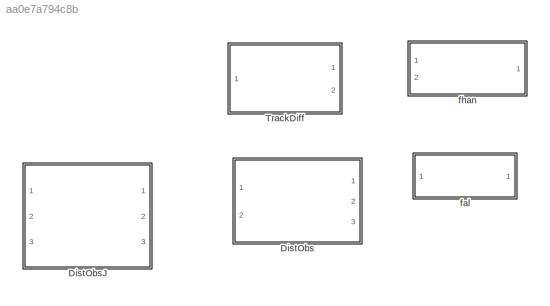
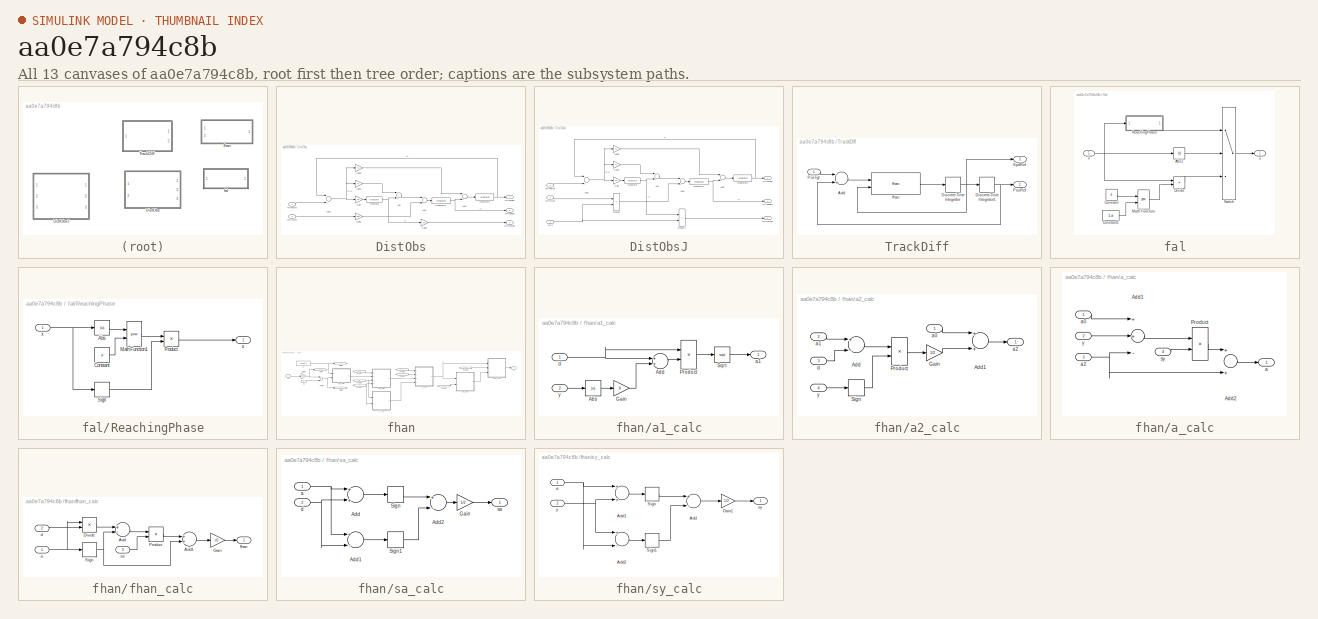
[diagram: thumbnail index - all 13 canvases of the model, root first then tree order]
MODEL slx_aa0e7a794c8b
KIND library
CONFIG AbsTol = auto
CONFIG EnableMultiTasking = off
CONFIG FixedStep = auto
CONFIG MaxStep = auto
CONFIG MinStep = auto
CONFIG RelTol = 1e-3
CONFIG SampleTimeConstraint = Unconstrained
CONFIG Solver = VariableStepAuto
CONFIG SolverName = VariableStepAuto
CONFIG StartTime = 0.0
CONFIG StopTime = 10.0
BLOCK [SubSystem] DistObs
  Ports = [2, 3]
  RequestExecContextInheritance = off
  SystemSampleTime = 1/30e3
BLOCK [Sum] DistObs/Add
  InputSameDT = off
  OutDataTypeStr = Inherit: Inherit via internal rule
  Ports = [2, 1]
  SaturateOnIntegerOverflow = off
BLOCK [Sum] DistObs/Add1
  InputSameDT = off
  OutDataTypeStr = Inherit: Inherit via internal rule
  Ports = [2, 1]
  SaturateOnIntegerOverflow = off
BLOCK [Sum] DistObs/Add2
  InputSameDT = off
  OutDataTypeStr = Inherit: Inherit via internal rule
  Ports = [2, 1]
  SaturateOnIntegerOverflow = off
BLOCK [Sum] DistObs/Add3
  InputSameDT = off
  Inputs = -+
  OutDataTypeStr = Inherit: Inherit via internal rule
  Ports = [2, 1]
  SaturateOnIntegerOverflow = off
BLOCK [Gain] DistObs/Gain
  AttributesFormatString = %<Gain>
  Gain = k3
  OutDataTypeStr = Inherit: Inherit via internal rule
  ParamDataTypeStr = Inherit: Inherit via internal rule
  SaturateOnIntegerOverflow = off
BLOCK [Gain] DistObs/Gain1
  AttributesFormatString = %<Gain>
  Gain = k2
  OutDataTypeStr = Inherit: Inherit via internal rule
  ParamDataTypeStr = Inherit: Inherit via internal rule
  SaturateOnIntegerOverflow = off
BLOCK [Gain] DistObs/Gain2
  AttributesFormatString = %<Gain>
  Gain = 1 / Jm
  OutDataTypeStr = Inherit: Inherit via internal rule
  ParamDataTypeStr = Inherit: Inherit via internal rule
  SaturateOnIntegerOverflow = off
BLOCK [Gain] DistObs/Gain3
  AttributesFormatString = %<Gain>
  Gain = k1
  OutDataTypeStr = Inherit: Inherit via internal rule
  ParamDataTypeStr = Inherit: Inherit via internal rule
  SaturateOnIntegerOverflow = off
BLOCK [Gain] DistObs/Gain4
  AttributesFormatString = %<Gain>
  Gain = -Jm
  OutDataTypeStr = Inherit: Inherit via internal rule
  ParamDataTypeStr = Inherit: Inherit via internal rule
  SaturateOnIntegerOverflow = off
BLOCK [Reference] DistObs/Integrator  REF=ctrl_lib/Integrator  (lib defined in slx_12a75478d468, slx_92942179a066)
  Ports = [1, 1]
  SourceBlock = ctrl_lib/Integrator
BLOCK [Reference] DistObs/Integrator1  REF=ctrl_lib/Integrator  (lib defined in slx_12a75478d468, slx_92942179a066)
  Ports = [1, 1]
  SourceBlock = ctrl_lib/Integrator
BLOCK [Reference] DistObs/Integrator2  REF=ctrl_lib/Integrator  (lib defined in slx_12a75478d468, slx_92942179a066)
  Ports = [1, 1]
  SourceBlock = ctrl_lib/Integrator
BLOCK [Outport] DistObs/MtrDistEst
  IconDisplay = Port number
  Port = 3
BLOCK [Inport] DistObs/MtrPosAct
  IconDisplay = Port number
BLOCK [Outport] DistObs/MtrPosEst
  IconDisplay = Port number
BLOCK [Outport] DistObs/MtrSpdEst
  IconDisplay = Port number
  Port = 2
BLOCK [Inport] DistObs/MtrTrqAct
  IconDisplay = Port number
  Port = 2
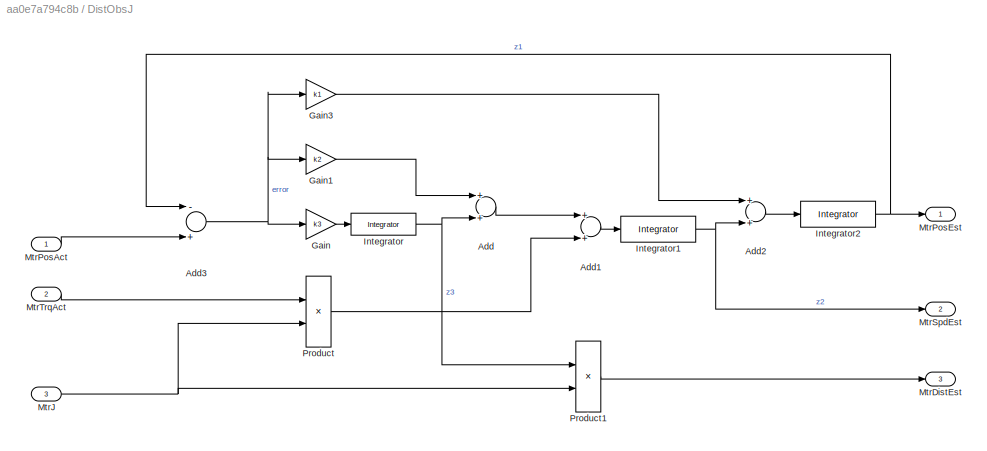
BLOCK [SubSystem] DistObsJ
  Ports = [3, 3]
  RequestExecContextInheritance = off
  SystemSampleTime = 1/30e3
BLOCK [Sum] DistObsJ/Add
  InputSameDT = off
  OutDataTypeStr = Inherit: Inherit via internal rule
  Ports = [2, 1]
  SaturateOnIntegerOverflow = off
BLOCK [Sum] DistObsJ/Add1
  InputSameDT = off
  OutDataTypeStr = Inherit: Inherit via internal rule
  Ports = [2, 1]
  SaturateOnIntegerOverflow = off
BLOCK [Sum] DistObsJ/Add2
  InputSameDT = off
  OutDataTypeStr = Inherit: Inherit via internal rule
  Ports = [2, 1]
  SaturateOnIntegerOverflow = off
BLOCK [Sum] DistObsJ/Add3
  InputSameDT = off
  Inputs = -+
  OutDataTypeStr = Inherit: Inherit via internal rule
  Ports = [2, 1]
  SaturateOnIntegerOverflow = off
BLOCK [Gain] DistObsJ/Gain
  AttributesFormatString = %<Gain>
  Gain = k3
  OutDataTypeStr = Inherit: Inherit via internal rule
  ParamDataTypeStr = Inherit: Inherit via internal rule
  SaturateOnIntegerOverflow = off
BLOCK [Gain] DistObsJ/Gain1
  AttributesFormatString = %<Gain>
  Gain = k2
  OutDataTypeStr = Inherit: Inherit via internal rule
  ParamDataTypeStr = Inherit: Inherit via internal rule
  SaturateOnIntegerOverflow = off
BLOCK [Gain] DistObsJ/Gain3
  AttributesFormatString = %<Gain>
  Gain = k1
  OutDataTypeStr = Inherit: Inherit via internal rule
  ParamDataTypeStr = Inherit: Inherit via internal rule
  SaturateOnIntegerOverflow = off
BLOCK [Reference] DistObsJ/Integrator  REF=ctrl_lib/Integrator  (lib defined in slx_12a75478d468, slx_92942179a066)
  Ports = [1, 1]
  SourceBlock = ctrl_lib/Integrator
BLOCK [Reference] DistObsJ/Integrator1  REF=ctrl_lib/Integrator  (lib defined in slx_12a75478d468, slx_92942179a066)
  Ports = [1, 1]
  SourceBlock = ctrl_lib/Integrator
BLOCK [Reference] DistObsJ/Integrator2  REF=ctrl_lib/Integrator  (lib defined in slx_12a75478d468, slx_92942179a066)
  Ports = [1, 1]
  SourceBlock = ctrl_lib/Integrator
BLOCK [Outport] DistObsJ/MtrDistEst
  IconDisplay = Port number
  Port = 3
BLOCK [Inport] DistObsJ/MtrJ
  IconDisplay = Port number
  Port = 3
BLOCK [Inport] DistObsJ/MtrPosAct
  IconDisplay = Port number
BLOCK [Outport] DistObsJ/MtrPosEst
  IconDisplay = Port number
BLOCK [Outport] DistObsJ/MtrSpdEst
  IconDisplay = Port number
  Port = 2
BLOCK [Inport] DistObsJ/MtrTrqAct
  IconDisplay = Port number
  Port = 2
BLOCK [Product] DistObsJ/Product
  InputSameDT = off
  Inputs = */
  OutDataTypeStr = Inherit: Inherit via internal rule
  Ports = [2, 1]
  RndMeth = Floor
  SaturateOnIntegerOverflow = off
BLOCK [Product] DistObsJ/Product1
  InputSameDT = off
  Inputs = **
  OutDataTypeStr = Inherit: Inherit via internal rule
  Ports = [2, 1]
  RndMeth = Floor
  SaturateOnIntegerOverflow = off
BLOCK [SubSystem] TrackDiff
  Ports = [1, 2]
  RequestExecContextInheritance = off
BLOCK [Sum] TrackDiff/Add
  AccumDataTypeStr = Inherit: Same as first input
  InputSameDT = off
  Inputs = -+
  OutDataTypeStr = Inherit: Inherit via internal rule
  Ports = [2, 1]
  SaturateOnIntegerOverflow = off
BLOCK [DiscreteIntegrator] TrackDiff/Discrete-Time Integrator
  ICPrevOutput = DiscIntNeverNeededParam
  ICPrevScaledInput = DiscIntNeverNeededParam
  IntegratorMethod = Accumulation: Forward Euler
  Ports = [1, 1]
  SampleTime = -1
  gainval = ts
BLOCK [DiscreteIntegrator] TrackDiff/Discrete-Time Integrator1
  ICPrevOutput = DiscIntNeverNeededParam
  ICPrevScaledInput = DiscIntNeverNeededParam
  IntegratorMethod = Accumulation: Forward Euler
  Ports = [1, 1]
  SampleTime = -1
  gainval = ts
BLOCK [Outport] TrackDiff/PosRef
  IconDisplay = Port number
BLOCK [Inport] TrackDiff/PosTgt
  IconDisplay = Port number
BLOCK [Outport] TrackDiff/SpdRef
  IconDisplay = Port number
  Port = 2
BLOCK [Reference] TrackDiff/fhan  REF=$bdroot/fhan
  Ports = [2, 1]
  SourceBlock = $bdroot/fhan
BLOCK [SubSystem] fal
  Ports = [1, 1]
  RequestExecContextInheritance = off
BLOCK [Abs] fal/Abs1
  SaturateOnIntegerOverflow = off
BLOCK [Constant] fal/Constant
  OutDataTypeStr = single
  Value = d
BLOCK [Constant] fal/Constant1
  OutDataTypeStr = single
  Value = 1-a
BLOCK [Product] fal/Divide
  InputSameDT = off
  Inputs = */
  OutDataTypeStr = Inherit: Inherit via internal rule
  Ports = [2, 1]
  RndMeth = Floor
  SaturateOnIntegerOverflow = off
BLOCK [Math] fal/Math Function
  Operator = pow
  Ports = [2, 1]
BLOCK [SubSystem] fal/ReachingPhase
  Ports = [1, 1]
  RequestExecContextInheritance = off
BLOCK [Abs] fal/ReachingPhase/Abs
  SaturateOnIntegerOverflow = off
BLOCK [Constant] fal/ReachingPhase/Constant
  OutDataTypeStr = single
  Value = a
BLOCK [Math] fal/ReachingPhase/Math Function1
  Operator = pow
  Ports = [2, 1]
BLOCK [Product] fal/ReachingPhase/Product
  InputSameDT = off
  Ports = [2, 1]
  RndMeth = Floor
  SaturateOnIntegerOverflow = off
BLOCK [Signum] fal/ReachingPhase/Sign
BLOCK [Outport] fal/ReachingPhase/u
  IconDisplay = Port number
BLOCK [Inport] fal/ReachingPhase/x
  IconDisplay = Port number
BLOCK [Switch] fal/Switch
  AttributesFormatString = %<Criteria>
  InputSameDT = off
  SaturateOnIntegerOverflow = off
  Threshold = delta
BLOCK [Outport] fal/u
  IconDisplay = Port number
BLOCK [Inport] fal/v
  IconDisplay = Port number
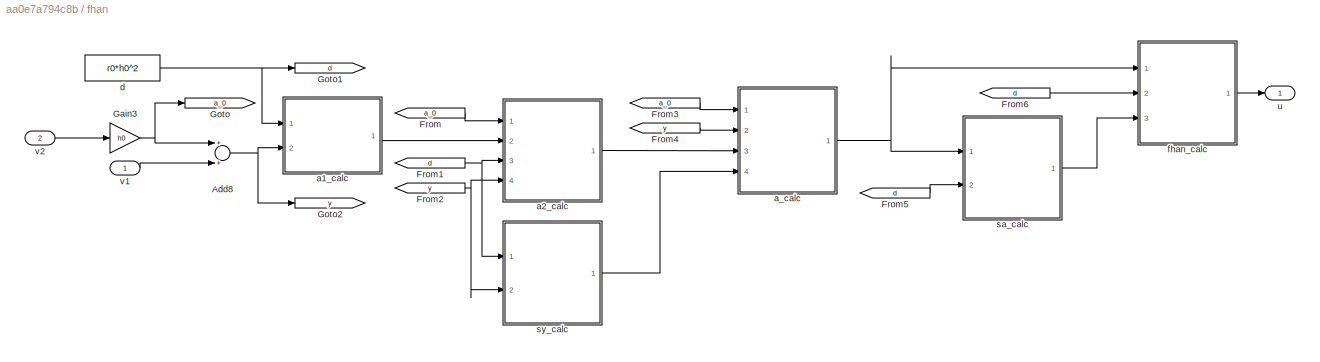
BLOCK [SubSystem] fhan
  Ports = [2, 1]
  RequestExecContextInheritance = off
BLOCK [Sum] fhan/Add8
  InputSameDT = off
  OutDataTypeStr = Inherit: Inherit via internal rule
  Ports = [2, 1]
  SaturateOnIntegerOverflow = off
BLOCK [From] fhan/From
  GotoTag = a_0
BLOCK [From] fhan/From1
  GotoTag = d
BLOCK [From] fhan/From2
  GotoTag = y
BLOCK [From] fhan/From3
  GotoTag = a_0
BLOCK [From] fhan/From4
  GotoTag = y
BLOCK [From] fhan/From5
  GotoTag = d
BLOCK [From] fhan/From6
  GotoTag = d
BLOCK [Gain] fhan/Gain3
  Gain = h0
  OutDataTypeStr = Inherit: Inherit via internal rule
  ParamDataTypeStr = Inherit: Inherit via internal rule
  SaturateOnIntegerOverflow = off
BLOCK [Goto] fhan/Goto
  GotoTag = a_0
BLOCK [Goto] fhan/Goto1
  GotoTag = d
BLOCK [Goto] fhan/Goto2
  GotoTag = y
BLOCK [SubSystem] fhan/a1_calc
  Ports = [2, 1]
  RequestExecContextInheritance = off
BLOCK [Abs] fhan/a1_calc/Abs
  SaturateOnIntegerOverflow = off
BLOCK [Sum] fhan/a1_calc/Add
  InputSameDT = off
  OutDataTypeStr = Inherit: Inherit via internal rule
  Ports = [2, 1]
  SaturateOnIntegerOverflow = off
BLOCK [Gain] fhan/a1_calc/Gain
  Gain = 8
  OutDataTypeStr = Inherit: Inherit via internal rule
  ParamDataTypeStr = Inherit: Inherit via internal rule
  SaturateOnIntegerOverflow = off
BLOCK [Product] fhan/a1_calc/Product
  InputSameDT = off
  OutDataTypeStr = Inherit: Inherit via internal rule
  Ports = [2, 1]
  RndMeth = Floor
  SaturateOnIntegerOverflow = off
BLOCK [Sqrt] fhan/a1_calc/Sqrt
BLOCK [Outport] fhan/a1_calc/a1
  IconDisplay = Port number
BLOCK [Inport] fhan/a1_calc/d
  IconDisplay = Port number
BLOCK [Inport] fhan/a1_calc/y
  IconDisplay = Port number
  Port = 2
BLOCK [SubSystem] fhan/a2_calc
  Ports = [4, 1]
  RequestExecContextInheritance = off
BLOCK [Sum] fhan/a2_calc/Add
  InputSameDT = off
  Inputs = +-
  OutDataTypeStr = Inherit: Inherit via internal rule
  Ports = [2, 1]
  SaturateOnIntegerOverflow = off
BLOCK [Sum] fhan/a2_calc/Add1
  InputSameDT = off
  OutDataTypeStr = Inherit: Inherit via internal rule
  Ports = [2, 1]
  SaturateOnIntegerOverflow = off
BLOCK [Gain] fhan/a2_calc/Gain
  Gain = 1/2
  OutDataTypeStr = Inherit: Inherit via internal rule
  ParamDataTypeStr = Inherit: Inherit via internal rule
  SaturateOnIntegerOverflow = off
BLOCK [Product] fhan/a2_calc/Product
  InputSameDT = off
  OutDataTypeStr = Inherit: Inherit via internal rule
  Ports = [2, 1]
  RndMeth = Floor
  SaturateOnIntegerOverflow = off
BLOCK [Signum] fhan/a2_calc/Sign
BLOCK [Inport] fhan/a2_calc/a0
  IconDisplay = Port number
BLOCK [Inport] fhan/a2_calc/a1
  IconDisplay = Port number
  Port = 2
BLOCK [Outport] fhan/a2_calc/a2
  IconDisplay = Port number
BLOCK [Inport] fhan/a2_calc/d
  IconDisplay = Port number
  Port = 3
BLOCK [Inport] fhan/a2_calc/y
  IconDisplay = Port number
  Port = 4
BLOCK [SubSystem] fhan/a_calc
  Ports = [4, 1]
  RequestExecContextInheritance = off
BLOCK [Sum] fhan/a_calc/Add1
  InputSameDT = off
  Inputs = ++-
  OutDataTypeStr = Inherit: Inherit via internal rule
  Ports = [3, 1]
  SaturateOnIntegerOverflow = off
BLOCK [Sum] fhan/a_calc/Add2
  InputSameDT = off
  OutDataTypeStr = Inherit: Inherit via internal rule
  Ports = [2, 1]
  SaturateOnIntegerOverflow = off
BLOCK [Product] fhan/a_calc/Product
  InputSameDT = off
  OutDataTypeStr = Inherit: Inherit via internal rule
  Ports = [2, 1]
  RndMeth = Floor
  SaturateOnIntegerOverflow = off
BLOCK [Outport] fhan/a_calc/a
  IconDisplay = Port number
BLOCK [Inport] fhan/a_calc/a0
  IconDisplay = Port number
BLOCK [Inport] fhan/a_calc/a2
  IconDisplay = Port number
  Port = 3
BLOCK [Inport] fhan/a_calc/sy
  IconDisplay = Port number
  Port = 4
BLOCK [Inport] fhan/a_calc/y
  IconDisplay = Port number
  Port = 2
BLOCK [Constant] fhan/d
  OutDataTypeStr = single
  Value = r0*h0^2
BLOCK [SubSystem] fhan/fhan_calc
  Ports = [3, 1]
  RequestExecContextInheritance = off
BLOCK [Sum] fhan/fhan_calc/Add
  InputSameDT = off
  Inputs = +-
  OutDataTypeStr = Inherit: Inherit via internal rule
  Ports = [2, 1]
  SaturateOnIntegerOverflow = off
BLOCK [Sum] fhan/fhan_calc/Add1
  InputSameDT = off
  OutDataTypeStr = Inherit: Inherit via internal rule
  Ports = [2, 1]
  SaturateOnIntegerOverflow = off
BLOCK [Product] fhan/fhan_calc/Divide
  InputSameDT = off
  Inputs = */
  OutDataTypeStr = Inherit: Inherit via internal rule
  Ports = [2, 1]
  RndMeth = Floor
  SaturateOnIntegerOverflow = off
BLOCK [Gain] fhan/fhan_calc/Gain
  Gain = -r0
  OutDataTypeStr = Inherit: Inherit via internal rule
  ParamDataTypeStr = Inherit: Inherit via internal rule
  SaturateOnIntegerOverflow = off
BLOCK [Product] fhan/fhan_calc/Product
  InputSameDT = off
  OutDataTypeStr = Inherit: Inherit via internal rule
  Ports = [2, 1]
  RndMeth = Floor
  SaturateOnIntegerOverflow = off
BLOCK [Signum] fhan/fhan_calc/Sign
BLOCK [Inport] fhan/fhan_calc/a
  IconDisplay = Port number
BLOCK [Inport] fhan/fhan_calc/d
  IconDisplay = Port number
  Port = 2
BLOCK [Outport] fhan/fhan_calc/fhan
  IconDisplay = Port number
BLOCK [Inport] fhan/fhan_calc/sa
  IconDisplay = Port number
  Port = 3
BLOCK [SubSystem] fhan/sa_calc
  Ports = [2, 1]
  RequestExecContextInheritance = off
BLOCK [Sum] fhan/sa_calc/Add
  InputSameDT = off
  OutDataTypeStr = Inherit: Inherit via internal rule
  Ports = [2, 1]
  SaturateOnIntegerOverflow = off
BLOCK [Sum] fhan/sa_calc/Add1
  InputSameDT = off
  Inputs = +-
  OutDataTypeStr = Inherit: Inherit via internal rule
  Ports = [2, 1]
  SaturateOnIntegerOverflow = off
BLOCK [Sum] fhan/sa_calc/Add2
  InputSameDT = off
  Inputs = +-
  OutDataTypeStr = Inherit: Inherit via internal rule
  Ports = [2, 1]
  SaturateOnIntegerOverflow = off
BLOCK [Gain] fhan/sa_calc/Gain
  Gain = 1/2
  OutDataTypeStr = Inherit: Inherit via internal rule
  ParamDataTypeStr = Inherit: Inherit via internal rule
  SaturateOnIntegerOverflow = off
BLOCK [Signum] fhan/sa_calc/Sign
BLOCK [Signum] fhan/sa_calc/Sign1
BLOCK [Inport] fhan/sa_calc/a
  IconDisplay = Port number
BLOCK [Inport] fhan/sa_calc/d
  IconDisplay = Port number
  Port = 2
BLOCK [Outport] fhan/sa_calc/sa
  IconDisplay = Port number
BLOCK [SubSystem] fhan/sy_calc
  Ports = [2, 1]
  RequestExecContextInheritance = off
BLOCK [Sum] fhan/sy_calc/Add
  InputSameDT = off
  Inputs = +-
  OutDataTypeStr = Inherit: Inherit via internal rule
  Ports = [2, 1]
  SaturateOnIntegerOverflow = off
BLOCK [Sum] fhan/sy_calc/Add1
  InputSameDT = off
  OutDataTypeStr = Inherit: Inherit via internal rule
  Ports = [2, 1]
  SaturateOnIntegerOverflow = off
BLOCK [Sum] fhan/sy_calc/Add2
  InputSameDT = off
  Inputs = +-
  OutDataTypeStr = Inherit: Inherit via internal rule
  Ports = [2, 1]
  SaturateOnIntegerOverflow = off
BLOCK [Gain] fhan/sy_calc/Gain1
  Gain = 1/2
  OutDataTypeStr = Inherit: Inherit via internal rule
  ParamDataTypeStr = Inherit: Inherit via internal rule
  SaturateOnIntegerOverflow = off
BLOCK [Signum] fhan/sy_calc/Sign
BLOCK [Signum] fhan/sy_calc/Sign1
BLOCK [Inport] fhan/sy_calc/d
  IconDisplay = Port number
BLOCK [Outport] fhan/sy_calc/sy
  IconDisplay = Port number
BLOCK [Inport] fhan/sy_calc/y
  IconDisplay = Port number
  Port = 2
BLOCK [Outport] fhan/u
  IconDisplay = Port number
BLOCK [Inport] fhan/v1
  IconDisplay = Port number
BLOCK [Inport] fhan/v2
  IconDisplay = Port number
  Port = 2
LINE DistObs/Add1:1 -> DistObs/Integrator1:1
LINE DistObs/Add2:1 -> DistObs/Integrator2:1
NET DistObs/Add3:1 -> DistObs/Gain1:1, DistObs/Gain3:1, DistObs/Gain:1
LINE DistObs/Add:1 -> DistObs/Add1:1
LINE DistObs/Gain1:1 -> DistObs/Add:1
LINE DistObs/Gain2:1 -> DistObs/Add1:2
LINE DistObs/Gain3:1 -> DistObs/Add2:1
LINE DistObs/Gain4:1 -> DistObs/MtrDistEst:1
LINE DistObs/Gain:1 -> DistObs/Integrator:1
NET DistObs/Integrator1:1 -> DistObs/Add2:2, DistObs/MtrSpdEst:1
NET DistObs/Integrator2:1 -> DistObs/Add3:1, DistObs/MtrPosEst:1
NET DistObs/Integrator:1 -> DistObs/Add:2, DistObs/Gain4:1
LINE DistObs/MtrPosAct:1 -> DistObs/Add3:2
LINE DistObs/MtrTrqAct:1 -> DistObs/Gain2:1
LINE DistObsJ/Add1:1 -> DistObsJ/Integrator1:1
LINE DistObsJ/Add2:1 -> DistObsJ/Integrator2:1
NET DistObsJ/Add3:1 -> DistObsJ/Gain1:1, DistObsJ/Gain3:1, DistObsJ/Gain:1
LINE DistObsJ/Add:1 -> DistObsJ/Add1:1
LINE DistObsJ/Gain1:1 -> DistObsJ/Add:1
LINE DistObsJ/Gain3:1 -> DistObsJ/Add2:1
LINE DistObsJ/Gain:1 -> DistObsJ/Integrator:1
NET DistObsJ/Integrator1:1 -> DistObsJ/Add2:2, DistObsJ/MtrSpdEst:1
NET DistObsJ/Integrator2:1 -> DistObsJ/Add3:1, DistObsJ/MtrPosEst:1
NET DistObsJ/Integrator:1 -> DistObsJ/Add:2, DistObsJ/Product1:1
NET DistObsJ/MtrJ:1 -> DistObsJ/Product1:2, DistObsJ/Product:2
LINE DistObsJ/MtrPosAct:1 -> DistObsJ/Add3:2
LINE DistObsJ/MtrTrqAct:1 -> DistObsJ/Product:1
LINE DistObsJ/Product1:1 -> DistObsJ/MtrDistEst:1
LINE DistObsJ/Product:1 -> DistObsJ/Add1:2
LINE TrackDiff/Add:1 -> TrackDiff/fhan:1
NET TrackDiff/Discrete-Time Integrator1:1 -> TrackDiff/Add:2, TrackDiff/PosRef:1
NET TrackDiff/Discrete-Time Integrator:1 -> TrackDiff/Discrete-Time Integrator1:1, TrackDiff/SpdRef:1, TrackDiff/fhan:2
LINE TrackDiff/PosTgt:1 -> TrackDiff/Add:1
LINE TrackDiff/fhan:1 -> TrackDiff/Discrete-Time Integrator:1
LINE fal/Abs1:1 -> fal/Switch:2
LINE fal/Constant1:1 -> fal/Math Function:2
LINE fal/Constant:1 -> fal/Math Function:1
LINE fal/Divide:1 -> fal/Switch:3
LINE fal/Math Function:1 -> fal/Divide:2
LINE fal/ReachingPhase/Abs:1 -> fal/ReachingPhase/Math Function1:1
LINE fal/ReachingPhase/Constant:1 -> fal/ReachingPhase/Math Function1:2
LINE fal/ReachingPhase/Math Function1:1 -> fal/ReachingPhase/Product:1
LINE fal/ReachingPhase/Product:1 -> fal/ReachingPhase/u:1
LINE fal/ReachingPhase/Sign:1 -> fal/ReachingPhase/Product:2
NET fal/ReachingPhase/x:1 -> fal/ReachingPhase/Abs:1, fal/ReachingPhase/Sign:1
LINE fal/ReachingPhase:1 -> fal/Switch:1
LINE fal/Switch:1 -> fal/u:1
NET fal/v:1 -> fal/Abs1:1, fal/Divide:1, fal/ReachingPhase:1
NET fhan/Add8:1 -> fhan/Goto2:1, fhan/a1_calc:2
NET fhan/From1:1 -> fhan/a2_calc:3, fhan/sy_calc:1
NET fhan/From2:1 -> fhan/a2_calc:4, fhan/sy_calc:2
LINE fhan/From3:1 -> fhan/a_calc:1
LINE fhan/From4:1 -> fhan/a_calc:2
LINE fhan/From5:1 -> fhan/sa_calc:2
LINE fhan/From6:1 -> fhan/fhan_calc:2
LINE fhan/From:1 -> fhan/a2_calc:1
NET fhan/Gain3:1 -> fhan/Add8:1, fhan/Goto:1
LINE fhan/a1_calc/Abs:1 -> fhan/a1_calc/Gain:1
LINE fhan/a1_calc/Add:1 -> fhan/a1_calc/Product:2
LINE fhan/a1_calc/Gain:1 -> fhan/a1_calc/Add:2
LINE fhan/a1_calc/Product:1 -> fhan/a1_calc/Sqrt:1
LINE fhan/a1_calc/Sqrt:1 -> fhan/a1_calc/a1:1
NET fhan/a1_calc/d:1 -> fhan/a1_calc/Add:1, fhan/a1_calc/Product:1
LINE fhan/a1_calc/y:1 -> fhan/a1_calc/Abs:1
LINE fhan/a1_calc:1 -> fhan/a2_calc:2
LINE fhan/a2_calc/Add1:1 -> fhan/a2_calc/a2:1
LINE fhan/a2_calc/Add:1 -> fhan/a2_calc/Product:1
LINE fhan/a2_calc/Gain:1 -> fhan/a2_calc/Add1:2
LINE fhan/a2_calc/Product:1 -> fhan/a2_calc/Gain:1
LINE fhan/a2_calc/Sign:1 -> fhan/a2_calc/Product:2
LINE fhan/a2_calc/a0:1 -> fhan/a2_calc/Add1:1
LINE fhan/a2_calc/a1:1 -> fhan/a2_calc/Add:1
LINE fhan/a2_calc/d:1 -> fhan/a2_calc/Add:2
LINE fhan/a2_calc/y:1 -> fhan/a2_calc/Sign:1
LINE fhan/a2_calc:1 -> fhan/a_calc:3
LINE fhan/a_calc/Add1:1 -> fhan/a_calc/Product:1
LINE fhan/a_calc/Add2:1 -> fhan/a_calc/a:1
LINE fhan/a_calc/Product:1 -> fhan/a_calc/Add2:1
LINE fhan/a_calc/a0:1 -> fhan/a_calc/Add1:1
NET fhan/a_calc/a2:1 -> fhan/a_calc/Add1:3, fhan/a_calc/Add2:2
LINE fhan/a_calc/sy:1 -> fhan/a_calc/Product:2
LINE fhan/a_calc/y:1 -> fhan/a_calc/Add1:2
NET fhan/a_calc:1 -> fhan/fhan_calc:1, fhan/sa_calc:1
NET fhan/d:1 -> fhan/Goto1:1, fhan/a1_calc:1
LINE fhan/fhan_calc/Add1:1 -> fhan/fhan_calc/Gain:1
LINE fhan/fhan_calc/Add:1 -> fhan/fhan_calc/Product:1
LINE fhan/fhan_calc/Divide:1 -> fhan/fhan_calc/Add:1
LINE fhan/fhan_calc/Gain:1 -> fhan/fhan_calc/fhan:1
LINE fhan/fhan_calc/Product:1 -> fhan/fhan_calc/Add1:1
NET fhan/fhan_calc/Sign:1 -> fhan/fhan_calc/Add1:2, fhan/fhan_calc/Add:2
NET fhan/fhan_calc/a:1 -> fhan/fhan_calc/Divide:1, fhan/fhan_calc/Sign:1
LINE fhan/fhan_calc/d:1 -> fhan/fhan_calc/Divide:2
LINE fhan/fhan_calc/sa:1 -> fhan/fhan_calc/Product:2
LINE fhan/fhan_calc:1 -> fhan/u:1
LINE fhan/sa_calc/Add1:1 -> fhan/sa_calc/Sign1:1
LINE fhan/sa_calc/Add2:1 -> fhan/sa_calc/Gain:1
LINE fhan/sa_calc/Add:1 -> fhan/sa_calc/Sign:1
LINE fhan/sa_calc/Gain:1 -> fhan/sa_calc/sa:1
LINE fhan/sa_calc/Sign1:1 -> fhan/sa_calc/Add2:2
LINE fhan/sa_calc/Sign:1 -> fhan/sa_calc/Add2:1
NET fhan/sa_calc/a:1 -> fhan/sa_calc/Add1:1, fhan/sa_calc/Add:1
NET fhan/sa_calc/d:1 -> fhan/sa_calc/Add1:2, fhan/sa_calc/Add:2
LINE fhan/sa_calc:1 -> fhan/fhan_calc:3
LINE fhan/sy_calc/Add1:1 -> fhan/sy_calc/Sign:1
LINE fhan/sy_calc/Add2:1 -> fhan/sy_calc/Sign1:1
LINE fhan/sy_calc/Add:1 -> fhan/sy_calc/Gain1:1
LINE fhan/sy_calc/Gain1:1 -> fhan/sy_calc/sy:1
LINE fhan/sy_calc/Sign1:1 -> fhan/sy_calc/Add:2
LINE fhan/sy_calc/Sign:1 -> fhan/sy_calc/Add:1
NET fhan/sy_calc/d:1 -> fhan/sy_calc/Add1:1, fhan/sy_calc/Add2:2
NET fhan/sy_calc/y:1 -> fhan/sy_calc/Add1:2, fhan/sy_calc/Add2:1
LINE fhan/sy_calc:1 -> fhan/a_calc:4
LINE fhan/v1:1 -> fhan/Add8:2
LINE fhan/v2:1 -> fhan/Gain3:1
note: NET lines group one-source signal fan-out (src -> all destinations, sorted); 1:1 wires keep LINE
